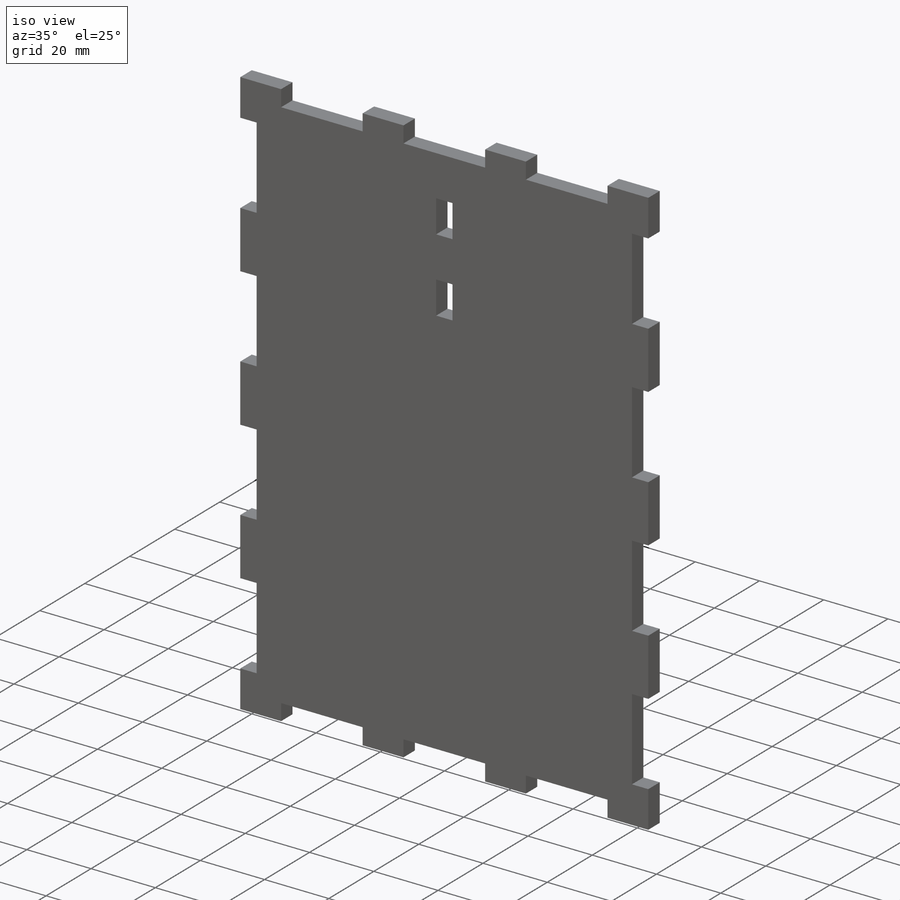
[diagram: iso view]
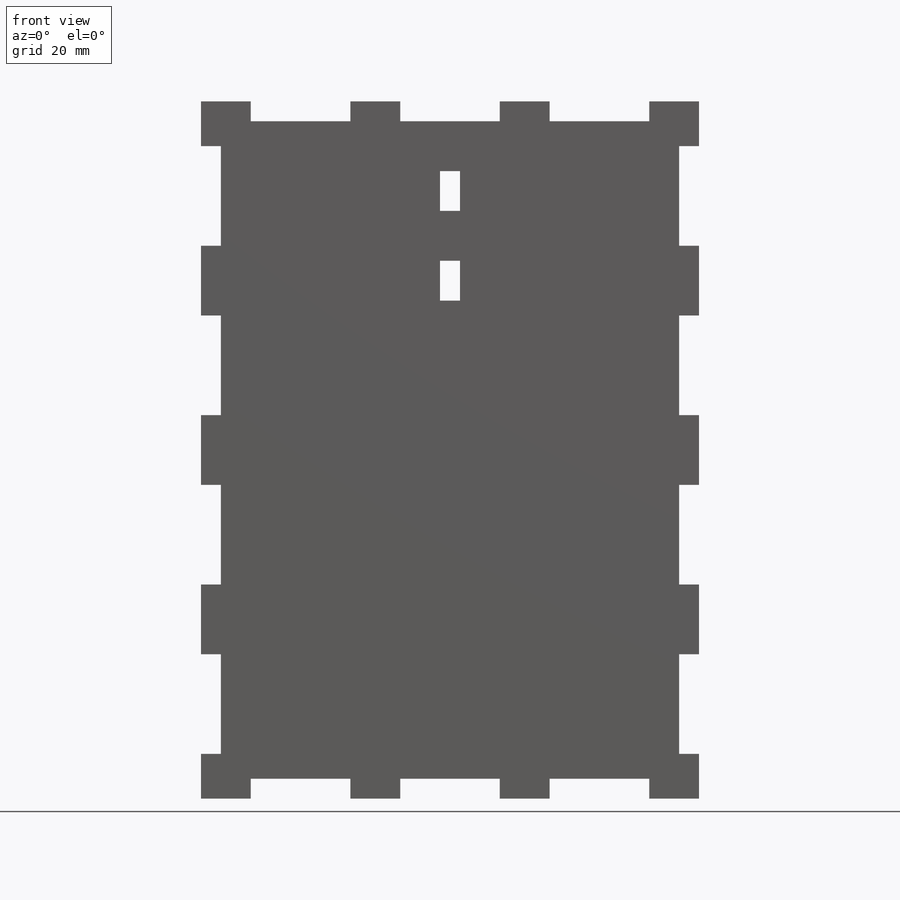
[diagram: front view]
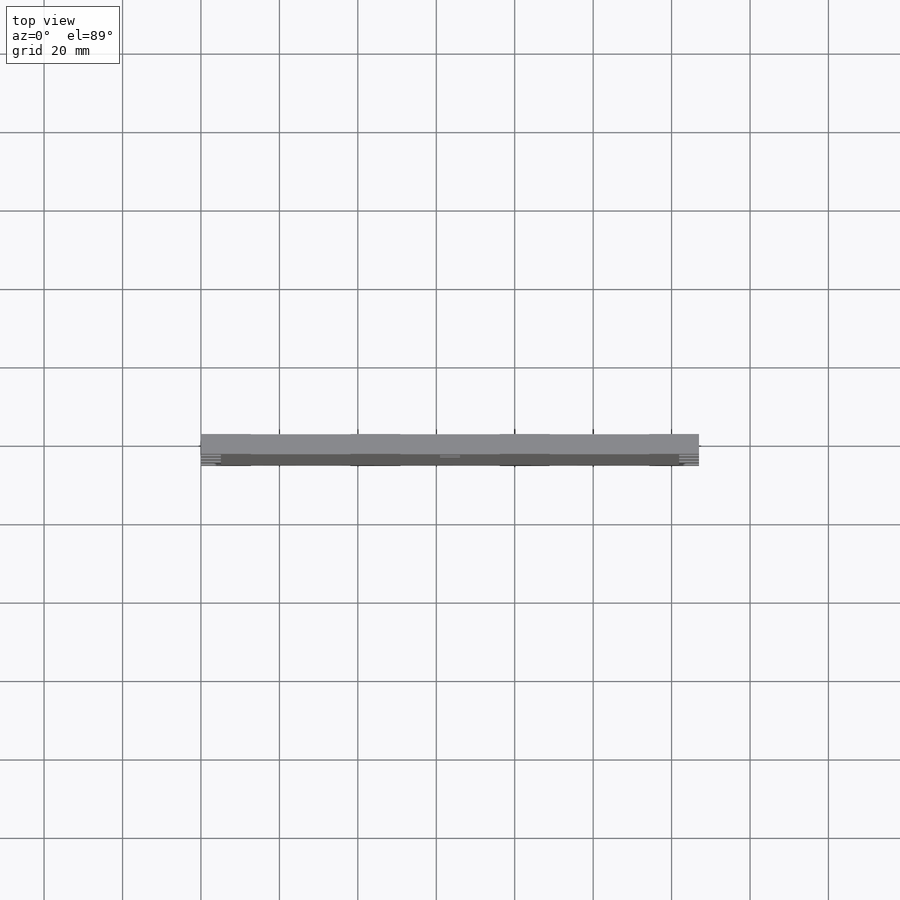
[diagram: top view]
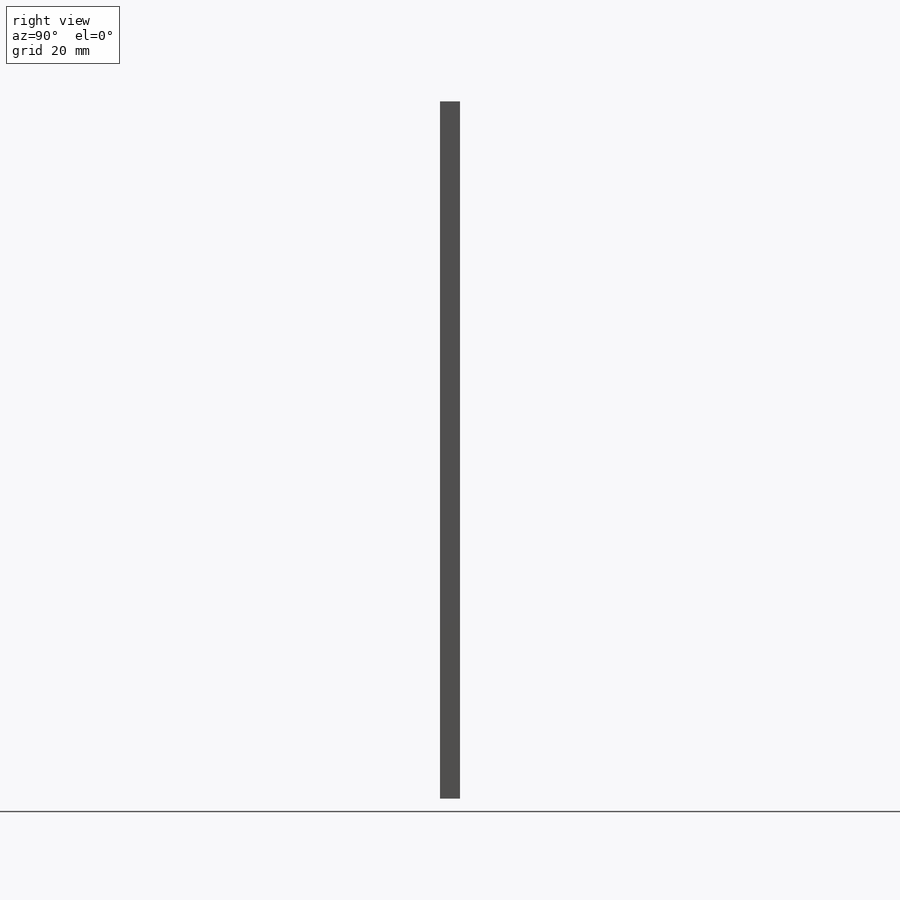
[diagram: right view]
SOLIDWORKS PART (.sldprt)
format: sldprt  version: not decoded by parser v0  size: 339,456 bytes
history: native  units: mm
features: sketch x6, cut_extrude x5, pattern_linear x4, material x1, extrude x1 (+13 scaffold rows collapsed)
feature tree (30):
  scaffold x13  (default folders/planes/origin — collapsed)
  material  "Material <not specified>"
  sketch  "Sketch2"  dims[D1=127.0mm D2=177.8mm]
  extrude  "Boss-Extrude2"  Depth=5.08mm
  sketch  "Sketch3"  dims[D1=5.08mm D2=25.4mm D3=11.43mm]
  cut_extrude  "Cut-Extrude1"  [1 undecoded]
  pattern_linear  "LPattern1"  Count1=5 Count2=1 Spacing1=43.18mm Spacing2=2.54mm
  sketch  "Sketch4"  dims[D1=5.08mm D2=11.43mm D3=25.4mm]
  cut_extrude  "Cut-Extrude2"  [1 undecoded]
  pattern_linear  "LPattern2"  Count1=4 Count2=1 Spacing1=43.18mm Spacing2=2.54mm
  sketch  "Sketch5"  dims[D1=5.08mm D2=12.7mm D3=25.4mm]
  cut_extrude  "Cut-Extrude3"  [1 undecoded]
  pattern_linear  "LPattern3"  Count1=3 Count2=1 Spacing1=38.1mm Spacing2=2.54mm
  sketch  "Sketch6"  dims[D1=12.7mm D2=5.08mm D3=25.4mm]
  cut_extrude  "Cut-Extrude4"  [1 undecoded]
  pattern_linear  "LPattern4"  Count1=3 Count2=1 Spacing1=38.1mm Spacing2=2.54mm
  sketch  "Sketch7"  dims[c1.D1=5.08mm c1.D2=5.08mm c1.D3=10.16mm c1.D4=10.16mm c1.D5=12.7mm c1.D6=5.08mm c2.D6=90.0deg c3.D6=55.88mm c3.D7=55.88mm c3.D8=60.96mm c3.D9=12.7mm]
  cut_extrude  "Cut-Extrude5"  [1 undecoded]
decode coverage: 11 of 16 modeling features carry decoded parameters
note: 5 parameter values undecoded
summary: no parameter record found for 5 features
note: suppression state not decoded; provenance and decode notes live in map.json
